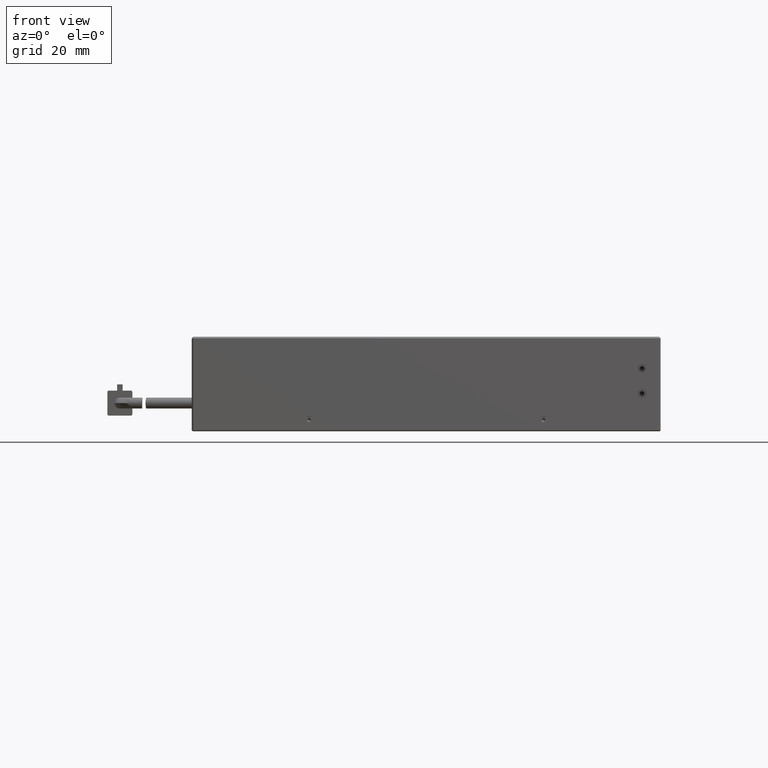
[diagram: clean part render]
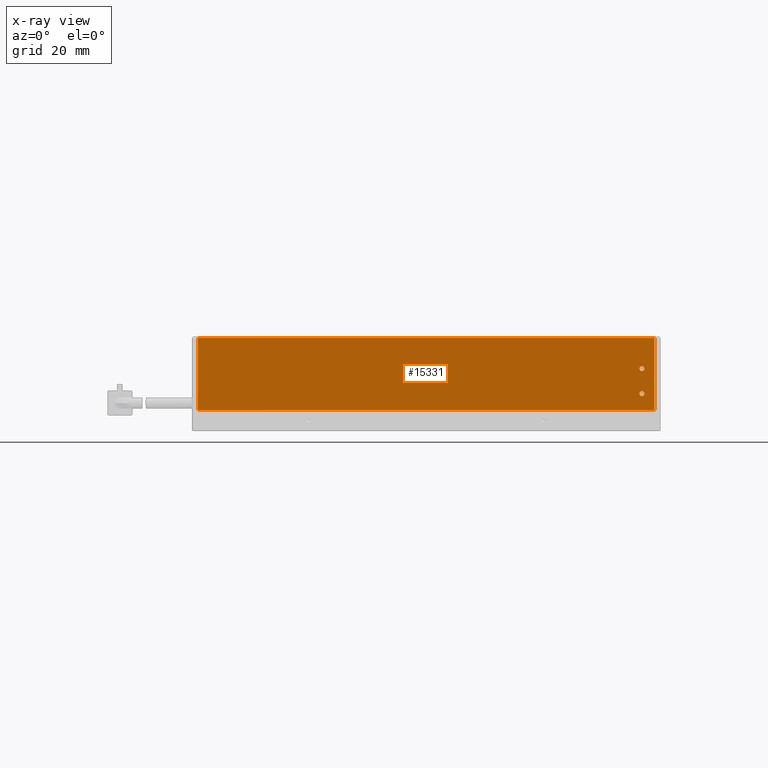
[diagram: x-ray — body ghosted, one internal face saturated and labeled with its STEP entity id]
A machine part, front view, then the same camera in x-ray: the body is ghosted and one INTERNAL B-rep face — a face not visible from any outside direction — is saturated and labeled: STEP entity #15331.
In plain terms, the highlighted planar face has unit normal (0, 1, 0).
Its self-contained STEP definition (entity closure, byte-faithful):
#36 = VERTEX_POINT ( 'NONE', #7552 ) ;
#522 = EDGE_LOOP ( 'NONE', ( #13236, #18484, #2494, #18214 ) ) ;
#791 = CARTESIAN_POINT ( 'NONE',  ( 58.36824938067784500, -62.25061932287293600, 14.99999999999997000 ) ) ;
#854 = DIRECTION ( 'NONE',  ( 1.000000000000000000, -1.103213455723619500E-016, 6.938351866335900600E-019 ) ) ;
#1487 = EDGE_CURVE ( 'NONE', #6325, #2222, #20431, .T. ) ;
#2003 = CARTESIAN_POINT ( 'NONE',  ( 59.16824938067784200, -62.25061932287293600, 14.99999999999997000 ) ) ;
#2222 = VERTEX_POINT ( 'NONE', #791 ) ;
#2470 = PLANE ( 'NONE',  #17699 ) ;
#2494 = ORIENTED_EDGE ( 'NONE', *, *, #14584, .F. ) ;
#2846 = AXIS2_PLACEMENT_3D ( 'NONE', #2003, #3037, #15549 ) ;
#2865 = VERTEX_POINT ( 'NONE', #8337 ) ;
#3001 = ORIENTED_EDGE ( 'NONE', *, *, #1487, .F. ) ;
#3024 = CARTESIAN_POINT ( 'NONE',  ( 59.96824938067784000, -62.25061932287292200, 6.999999999999968900 ) ) ;
#3037 = DIRECTION ( 'NONE',  ( 7.978533672646619300E-017, -1.000000000000000000, -6.487865800153258500E-016 ) ) ;
#4103 = AXIS2_PLACEMENT_3D ( 'NONE', #7150, #18893, #8856 ) ;
#4186 = LINE ( 'NONE', #6930, #8144 ) ;
#4669 = ORIENTED_EDGE ( 'NONE', *, *, #10472, .F. ) ;
#5485 = ORIENTED_EDGE ( 'NONE', *, *, #15806, .F. ) ;
#5828 = CARTESIAN_POINT ( 'NONE',  ( 59.16824938067784200, -62.25061932287292200, 6.999999999999968000 ) ) ;
#6325 = VERTEX_POINT ( 'NONE', #10126 ) ;
#6614 = DIRECTION ( 'NONE',  ( 1.000000000000000000, -1.103213455723619500E-016, 6.938351866335900600E-019 ) ) ;
#6930 = CARTESIAN_POINT ( 'NONE',  ( 63.16824938067708200, -62.25061932287367500, 24.79999999999996900 ) ) ;
#7047 = LINE ( 'NONE', #21376, #19951 ) ;
#7150 = CARTESIAN_POINT ( 'NONE',  ( 59.16824938067784200, -62.25061932287293600, 14.99999999999997000 ) ) ;
#7552 = CARTESIAN_POINT ( 'NONE',  ( 63.16824938067709600, -62.25061932287367500, 24.79999999999996900 ) ) ;
#7573 = DIRECTION ( 'NONE',  ( -1.000000000000000000, 0.0000000000000000000, 0.0000000000000000000 ) ) ;
#8144 = VECTOR ( 'NONE', #6614, 1000.000000000000000 ) ;
#8337 = CARTESIAN_POINT ( 'NONE',  ( 63.16824938067709600, -62.25061932287366100, 1.799999999999968300 ) ) ;
#8392 = LINE ( 'NONE', #20265, #12851 ) ;
#8529 = VERTEX_POINT ( 'NONE', #18497 ) ;
#8856 = DIRECTION ( 'NONE',  ( -1.000000000000000000, 0.0000000000000000000, 0.0000000000000000000 ) ) ;
#8992 = EDGE_CURVE ( 'NONE', #18525, #36, #4186, .T. ) ;
#9170 = DIRECTION ( 'NONE',  ( -1.000000000000000000, 0.0000000000000000000, 0.0000000000000000000 ) ) ;
#9248 = DIRECTION ( 'NONE',  ( 7.978533672646619300E-017, -1.000000000000000000, -6.487865800153258500E-016 ) ) ;
#9299 = CARTESIAN_POINT ( 'NONE',  ( 59.16824938067784200, -62.25061932287292200, 6.999999999999968000 ) ) ;
#9335 = LINE ( 'NONE', #17539, #18221 ) ;
#9460 = VERTEX_POINT ( 'NONE', #10467 ) ;
#9930 = EDGE_CURVE ( 'NONE', #9460, #18525, #7047, .T. ) ;
#10126 = CARTESIAN_POINT ( 'NONE',  ( 59.96824938067784000, -62.25061932287293600, 14.99999999999997200 ) ) ;
#10467 = CARTESIAN_POINT ( 'NONE',  ( -82.83175061932291800, -62.25061932287364600, 1.799999999999968300 ) ) ;
#10472 = EDGE_CURVE ( 'NONE', #8529, #20607, #21193, .T. ) ;
#10685 = FACE_BOUND ( 'NONE', #21263, .T. ) ;
#10979 = DIRECTION ( 'NONE',  ( 1.103213455723619500E-016, 1.000000000000000000, 6.487865800153258500E-016 ) ) ;
#11200 = AXIS2_PLACEMENT_3D ( 'NONE', #9299, #9248, #9170 ) ;
#12052 = DIRECTION ( 'NONE',  ( 6.938351866336616100E-019, 6.487865800153258500E-016, -1.000000000000000000 ) ) ;
#12739 = CIRCLE ( 'NONE', #17491, 0.7999999999999951600 ) ;
#12798 = EDGE_CURVE ( 'NONE', #20607, #8529, #12739, .T. ) ;
#12851 = VECTOR ( 'NONE', #12052, 1000.000000000000000 ) ;
#13236 = ORIENTED_EDGE ( 'NONE', *, *, #9930, .F. ) ;
#14184 = CIRCLE ( 'NONE', #4103, 0.7999999999999951600 ) ;
#14584 = EDGE_CURVE ( 'NONE', #36, #2865, #8392, .T. ) ;
#15100 = FACE_BOUND ( 'NONE', #20534, .T. ) ;
#15331 = ADVANCED_FACE ( 'NONE', ( #19586, #10685, #15100 ), #2470, .F. ) ;
#15549 = DIRECTION ( 'NONE',  ( -1.000000000000000000, 0.0000000000000000000, 0.0000000000000000000 ) ) ;
#15693 = CARTESIAN_POINT ( 'NONE',  ( -82.83175061932291800, -62.25061932287366100, 24.79999999999996900 ) ) ;
#15799 = ORIENTED_EDGE ( 'NONE', *, *, #12798, .F. ) ;
#15806 = EDGE_CURVE ( 'NONE', #2222, #6325, #14184, .T. ) ;
#17164 = EDGE_CURVE ( 'NONE', #2865, #9460, #9335, .T. ) ;
#17461 = DIRECTION ( 'NONE',  ( -1.000000000000000000, 1.103213455723619500E-016, -6.938351866335900600E-019 ) ) ;
#17491 = AXIS2_PLACEMENT_3D ( 'NONE', #5828, #17605, #7573 ) ;
#17539 = CARTESIAN_POINT ( 'NONE',  ( 63.16824938067708200, -62.25061932287366100, 1.799999999999968300 ) ) ;
#17605 = DIRECTION ( 'NONE',  ( 7.978533672646619300E-017, -1.000000000000000000, -6.487865800153258500E-016 ) ) ;
#17699 = AXIS2_PLACEMENT_3D ( 'NONE', #20982, #10979, #854 ) ;
#18214 = ORIENTED_EDGE ( 'NONE', *, *, #8992, .F. ) ;
#18221 = VECTOR ( 'NONE', #17461, 1000.000000000000000 ) ;
#18484 = ORIENTED_EDGE ( 'NONE', *, *, #17164, .F. ) ;
#18497 = CARTESIAN_POINT ( 'NONE',  ( 58.36824938067784500, -62.25061932287292200, 6.999999999999968000 ) ) ;
#18525 = VERTEX_POINT ( 'NONE', #15693 ) ;
#18893 = DIRECTION ( 'NONE',  ( 7.978533672646619300E-017, -1.000000000000000000, -6.487865800153258500E-016 ) ) ;
#19586 = FACE_OUTER_BOUND ( 'NONE', #522, .T. ) ;
#19951 = VECTOR ( 'NONE', #21353, 1000.000000000000000 ) ;
#20265 = CARTESIAN_POINT ( 'NONE',  ( 63.16824938067708200, -62.25061932287366100, 1.799999999999968300 ) ) ;
#20431 = CIRCLE ( 'NONE', #2846, 0.7999999999999951600 ) ;
#20534 = EDGE_LOOP ( 'NONE', ( #4669, #15799 ) ) ;
#20607 = VERTEX_POINT ( 'NONE', #3024 ) ;
#20982 = CARTESIAN_POINT ( 'NONE',  ( 63.16824938067708200, -62.25061932287366100, 1.799999999999968300 ) ) ;
#21193 = CIRCLE ( 'NONE', #11200, 0.7999999999999951600 ) ;
#21263 = EDGE_LOOP ( 'NONE', ( #5485, #3001 ) ) ;
#21353 = DIRECTION ( 'NONE',  ( -6.938351866336616100E-019, -6.487865800153258500E-016, 1.000000000000000000 ) ) ;
#21376 = CARTESIAN_POINT ( 'NONE',  ( -82.83175061932293200, -62.25061932287363200, 1.799999999999968300 ) ) ;